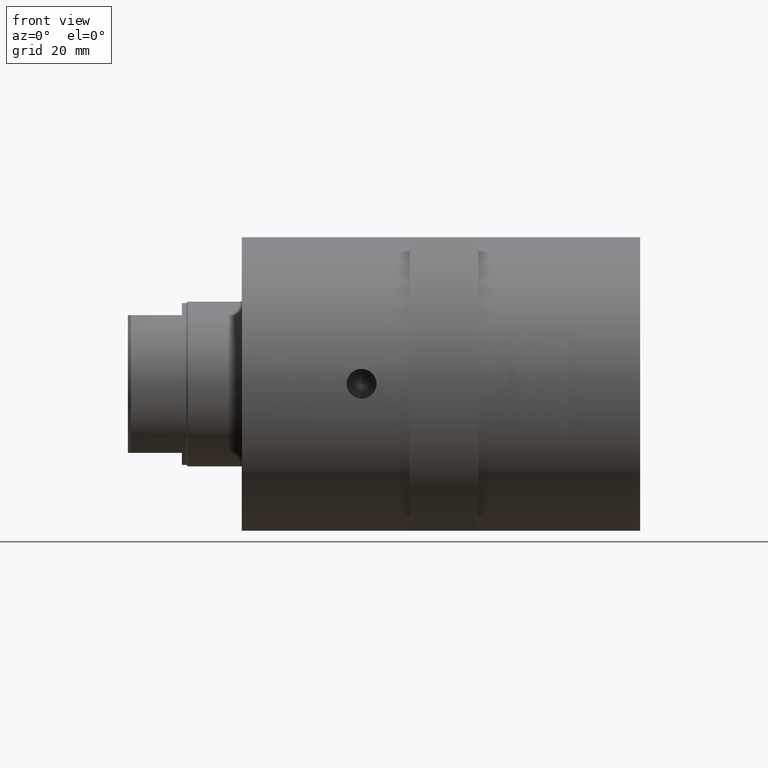
[diagram: clean part render]
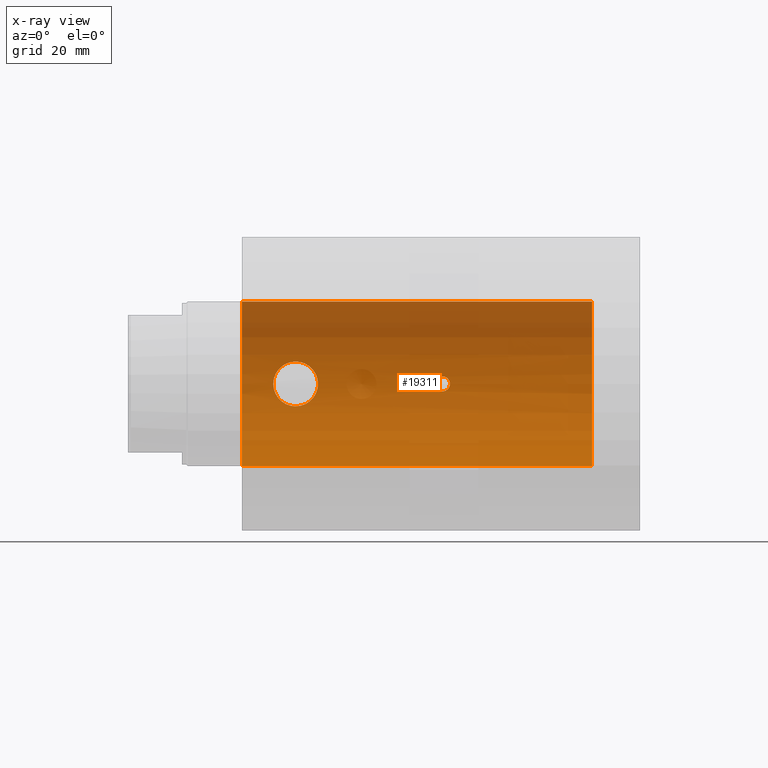
[diagram: x-ray — body ghosted, one internal face saturated and labeled with its STEP entity id]
A machine part, front view, then the same camera in x-ray: the body is ghosted and one INTERNAL B-rep face — a face not visible from any outside direction — is saturated and labeled: STEP entity #19311.
In plain terms, the highlighted cylindrical surface (partial cylindrical patch) has radius 27.5 mm, axis along (-1, 0, 0).
Its self-contained STEP definition (entity closure, byte-faithful):
#92 = CARTESIAN_POINT ( 'NONE',  ( 65.11523636070056400, 27.45066069105921300, -1.650730602895545500 ) ) ;
#181 = CARTESIAN_POINT ( 'NONE',  ( 65.89179133463778700, 27.40812334856206400, -2.246939515123460600 ) ) ;
#309 = CARTESIAN_POINT ( 'NONE',  ( 17.75536625532522100, 26.46458718740952400, -7.475000000000001400 ) ) ;
#333 = CARTESIAN_POINT ( 'NONE',  ( 0.0000000000000000000, 3.367778697655221300E-015, -27.50000000000000000 ) ) ;
#548 = CARTESIAN_POINT ( 'NONE',  ( 18.97795456427604000, 26.47821375219967900, -7.427267899481612400 ) ) ;
#566 = CARTESIAN_POINT ( 'NONE',  ( 11.19098580126821900, 27.32633757140092400, -3.094088770025283300 ) ) ;
#647 = CARTESIAN_POINT ( 'NONE',  ( 13.44288390249652000, 26.85343665521977700, 5.930277466082692700 ) ) ;
#694 = CARTESIAN_POINT ( 'NONE',  ( 67.00000000000000000, 27.38612787525830700, -2.500000000000000000 ) ) ;
#722 = CARTESIAN_POINT ( 'NONE',  ( 14.67728012207530600, 26.66857484413142700, 6.713780011691424600 ) ) ;
#786 = CARTESIAN_POINT ( 'NONE',  ( 25.47509942670567900, 27.50002702598584700, 0.4913167523612605400 ) ) ;
#914 = CARTESIAN_POINT ( 'NONE',  ( 66.67223394146361700, 27.38762298784715900, 2.483772405167611600 ) ) ;
#977 = CARTESIAN_POINT ( 'NONE',  ( 69.24589389846782700, 27.47799339182509800, -1.110304090982459300 ) ) ;
#993 = CARTESIAN_POINT ( 'NONE',  ( 24.71223318029187900, 27.30192028210517900, -3.326378843521970100 ) ) ;
#1040 = DIRECTION ( 'NONE',  ( -1.000000000000000000, 0.0000000000000000000, 0.0000000000000000000 ) ) ;
#1066 = CARTESIAN_POINT ( 'NONE',  ( 25.47495005776006100, 27.49998642479139800, -0.2479239431047444200 ) ) ;
#1109 = DIRECTION ( 'NONE',  ( -1.000000000000000000, 0.0000000000000000000, 0.0000000000000000000 ) ) ;
#1345 = CARTESIAN_POINT ( 'NONE',  ( 67.33046830124749200, 27.38612787525830000, 2.500000000000000000 ) ) ;
#1518 = EDGE_LOOP ( 'NONE', ( #2819, #14366, #2165, #8032 ) ) ;
#1933 = AXIS2_PLACEMENT_3D ( 'NONE', #17274, #17423, #7024 ) ;
#1978 = B_SPLINE_CURVE_WITH_KNOTS ( 'NONE', 3,
 ( #17946, #12544, #548, #2206, #3889, #5620, #7398, #5702, #7476, #19561, #21302, #10951, #14964, #19851, #9639, #11466, #993, #7926, #19780, #21613, #13070, #7710, #1066, #786, #16575, #11388, #18226, #2517, #4405, #6146, #2745, #14889, #11243, #13214, #21752, #9721, #2593, #8001, #14747, #9576, #16498, #4546 ),
 .UNSPECIFIED., .F., .F.,
 ( 4, 2, 2, 2, 2, 2, 2, 2, 2, 2, 2, 2, 2, 2, 2, 2, 2, 2, 2, 2, 4 ),
 ( 0.02348094683318185200, 0.02494810252371839100, 0.02641525821425493400, 0.02714883605952319800, 0.02788241390479146200, 0.02934956959532800100, 0.03008314744059626500, 0.03081672528586453000, 0.03228388097640105800, 0.03375103666693758700, 0.03448461451220585800, 0.03521819235747412200, 0.03668534804801065800, 0.03815250373854718600, 0.03961965942908371500, 0.04108681511962025000, 0.04182039296488851400, 0.04255397081015677800, 0.04402112650069330000, 0.04548828219122982200, 0.04695543788176634300 ),
 .UNSPECIFIED. ) ;
#2004 = B_SPLINE_CURVE_WITH_KNOTS ( 'NONE', 3,
 ( #17804, #5802, #5871, #16138, #21486, #16221, #9373, #722, #11041, #5720, #647, #2305, #19579, #17885, #7651, #5953, #7494, #4135, #9222, #12794, #21320, #9301, #10963, #11122, #12869, #2457, #14622, #566, #2385, #12724, #14469, #17958, #4206, #16364, #18036, #19652, #4068, #14550, #16295, #16197, #2124, #7472, #5850, #3807, #309, #17944 ),
 .UNSPECIFIED., .F., .F.,
 ( 4, 2, 2, 2, 2, 2, 2, 2, 2, 2, 2, 2, 2, 2, 2, 2, 2, 2, 2, 2, 2, 2, 4 ),
 ( 0.0000000000000000000, 0.001467559177073865800, 0.002201338765610793200, 0.002935118354147726400, 0.004402677531221588200, 0.005136457119758520500, 0.005870236708295452700, 0.007337795885369319800, 0.008805355062443185100, 0.009539134650980118200, 0.01027291423951705100, 0.01174047341659091800, 0.01320803259366478200, 0.01467559177073864600, 0.01540937135927558000, 0.01614315094781251400, 0.01687693053634944600, 0.01761071012488637700, 0.01907826930196024300, 0.02054582847903411000, 0.02201338765610797600, 0.02274716724464491400, 0.02348094683318185200 ),
 .UNSPECIFIED. ) ;
#2124 = CARTESIAN_POINT ( 'NONE',  ( 16.05069946200107000, 26.53191756535354500, -7.233074696947103800 ) ) ;
#2165 = ORIENTED_EDGE ( 'NONE', *, *, #15019, .T. ) ;
#2206 = CARTESIAN_POINT ( 'NONE',  ( 19.94890278087638400, 26.53182297594147000, -7.233428062208860300 ) ) ;
#2282 = CARTESIAN_POINT ( 'NONE',  ( 67.00000000000000000, 27.38612787525830000, 2.500000000000000000 ) ) ;
#2305 = CARTESIAN_POINT ( 'NONE',  ( 13.06480736279015200, 26.92017606621745400, 5.619552614264161000 ) ) ;
#2385 = CARTESIAN_POINT ( 'NONE',  ( 11.29707081203474100, 27.30001972485456500, -3.317539294584015900 ) ) ;
#2457 = CARTESIAN_POINT ( 'NONE',  ( 10.76608523352370700, 27.43529356087345800, -1.945777836373682200 ) ) ;
#2517 = CARTESIAN_POINT ( 'NONE',  ( 24.71615417418990300, 27.30289935315815000, 3.317670888814881400 ) ) ;
#2579 = CARTESIAN_POINT ( 'NONE',  ( 69.41978431206601400, 27.49280537999009500, -0.6489920584644003300 ) ) ;
#2593 = CARTESIAN_POINT ( 'NONE',  ( 21.32430097662706800, 26.66880538534104900, 6.712847478172550500 ) ) ;
#2658 = CARTESIAN_POINT ( 'NONE',  ( 64.83044321400032600, 27.47177960410005700, 1.253015001004229100 ) ) ;
#2745 = CARTESIAN_POINT ( 'NONE',  ( 23.63034157671647900, 27.05480027342353500, 4.940635970254273700 ) ) ;
#2757 = CARTESIAN_POINT ( 'NONE',  ( 67.00000000000000000, 27.38612787525830000, 2.500000000000000000 ) ) ;
#2787 = DIRECTION ( 'NONE',  ( 0.0000000000000000000, 0.0000000000000000000, 1.000000000000000000 ) ) ;
#2819 = ORIENTED_EDGE ( 'NONE', *, *, #18119, .F. ) ;
#2856 = DIRECTION ( 'NONE',  ( 0.0000000000000000000, 0.0000000000000000000, 1.000000000000000000 ) ) ;
#3075 = VERTEX_POINT ( 'NONE', #2757 ) ;
#3099 = CARTESIAN_POINT ( 'NONE',  ( 69.48400851460903000, 27.49853276776191900, 0.3259453402238068900 ) ) ;
#3330 = DIRECTION ( 'NONE',  ( -1.000000000000000000, 0.0000000000000000000, 0.0000000000000000000 ) ) ;
#3404 = EDGE_CURVE ( 'NONE', #18075, #9536, #2004, .T. ) ;
#3489 = CARTESIAN_POINT ( 'NONE',  ( 64.58009642053151800, 27.49281581413280800, -0.6486916680093112200 ) ) ;
#3807 = CARTESIAN_POINT ( 'NONE',  ( 17.51040728404204200, 26.46797979794881800, -7.463020768421211300 ) ) ;
#3889 = CARTESIAN_POINT ( 'NONE',  ( 20.41624920388523300, 26.57089150606278900, -7.090488265879765000 ) ) ;
#4068 = CARTESIAN_POINT ( 'NONE',  ( 13.43724227817003000, 26.85207456783437900, -5.940805415729937700 ) ) ;
#4135 = CARTESIAN_POINT ( 'NONE',  ( 11.00420413024272300, 27.37347927350591100, 2.644554621784801300 ) ) ;
#4206 = CARTESIAN_POINT ( 'NONE',  ( 12.06845284708464700, 27.12074438409769400, -4.555415824726341400 ) ) ;
#4248 = CARTESIAN_POINT ( 'NONE',  ( 69.42070319222412400, 27.49288653495426600, 0.6455499365810889500 ) ) ;
#4309 = CARTESIAN_POINT ( 'NONE',  ( 64.75265145546973100, 27.47811270257199500, -1.107371109850595400 ) ) ;
#4322 = CARTESIAN_POINT ( 'NONE',  ( 67.00000000000000000, 27.38612787525830000, 2.500000000000000000 ) ) ;
#4393 = CARTESIAN_POINT ( 'NONE',  ( 68.65123843601075700, 27.43562187941372700, -1.884135354010223300 ) ) ;
#4405 = CARTESIAN_POINT ( 'NONE',  ( 24.48663553563285700, 27.24665623698916400, 3.747008633669733200 ) ) ;
#4441 = CARTESIAN_POINT ( 'NONE',  ( 67.00000000000000000, 27.38612787525830700, -2.500000000000000000 ) ) ;
#4447 = CARTESIAN_POINT ( 'NONE',  ( 0.0000000000000000000, 0.0000000000000000000, 0.0000000000000000000 ) ) ;
#4546 = CARTESIAN_POINT ( 'NONE',  ( 18.00000000000000000, 26.46458718740949900, 7.474999999999999600 ) ) ;
#4585 = FACE_BOUND ( 'NONE', #9268, .T. ) ;
#4670 = LINE ( 'NONE', #13723, #9569 ) ;
#4766 = CARTESIAN_POINT ( 'NONE',  ( 69.16903744751194000, 27.47174050992752100, -1.253778617228837700 ) ) ;
#4833 = CARTESIAN_POINT ( 'NONE',  ( 69.49987046705263100, 27.49998822428105100, -0.1670435226102900400 ) ) ;
#5087 = CIRCLE ( 'NONE', #1933, 27.50000000000000000 ) ;
#5109 = CARTESIAN_POINT ( 'NONE',  ( 66.19463722653236500, 27.39754931085801500, -2.372394240787085300 ) ) ;
#5410 = LINE ( 'NONE', #18581, #9228 ) ;
#5620 = CARTESIAN_POINT ( 'NONE',  ( 21.09159976273779300, 26.64361601108005600, -6.810069799422271000 ) ) ;
#5702 = CARTESIAN_POINT ( 'NONE',  ( 21.74527712225109300, 26.72742879213649300, -6.473700826561126200 ) ) ;
#5704 = VERTEX_POINT ( 'NONE', #9482 ) ;
#5720 = CARTESIAN_POINT ( 'NONE',  ( 13.64078322933166600, 26.82045953393659900, 6.077197465274299000 ) ) ;
#5802 = CARTESIAN_POINT ( 'NONE',  ( 17.50357705932427900, 26.46458718740949600, 7.474999999999999600 ) ) ;
#5850 = CARTESIAN_POINT ( 'NONE',  ( 17.01982476427496800, 26.48159732814158900, -7.414555719979232700 ) ) ;
#5871 = CARTESIAN_POINT ( 'NONE',  ( 17.01594267226408500, 26.47855226445880200, 7.426043666811009000 ) ) ;
#5953 = CARTESIAN_POINT ( 'NONE',  ( 11.51502907539793900, 27.24625525416039900, 3.749955181108660000 ) ) ;
#6050 = VERTEX_POINT ( 'NONE', #15752 ) ;
#6063 = CARTESIAN_POINT ( 'NONE',  ( 68.98744441338102700, 27.45799953551538400, -1.525368471370080800 ) ) ;
#6067 = CARTESIAN_POINT ( 'NONE',  ( 64.58014072329702100, 27.49281172434021800, 0.6491215925948513600 ) ) ;
#6130 = EDGE_CURVE ( 'NONE', #3075, #20541, #16643, .T. ) ;
#6132 = CARTESIAN_POINT ( 'NONE',  ( 68.98962856416270000, 27.45815848969740400, 1.522509708945851900 ) ) ;
#6136 = CARTESIAN_POINT ( 'NONE',  ( 66.35257312043719900, 27.39331348887362700, 2.420205442812690700 ) ) ;
#6146 = CARTESIAN_POINT ( 'NONE',  ( 23.94100449293876000, 27.12193521689859200, 4.563001193053962000 ) ) ;
#6509 = CARTESIAN_POINT ( 'NONE',  ( 68.52812178172209200, 27.42839017208696400, 1.985401716315082800 ) ) ;
#6692 = EDGE_CURVE ( 'NONE', #12232, #20012, #10456, .T. ) ;
#6827 = AXIS2_PLACEMENT_3D ( 'NONE', #4447, #1040, #2787 ) ;
#7024 = DIRECTION ( 'NONE',  ( 0.0000000000000000000, 0.0000000000000000000, -1.000000000000000000 ) ) ;
#7172 = CARTESIAN_POINT ( 'NONE',  ( 66.67102248057341300, 27.38763498776080100, -2.483642640967841200 ) ) ;
#7398 = CARTESIAN_POINT ( 'NONE',  ( 21.31240657144706700, 26.67021534241586900, -6.705510108836606700 ) ) ;
#7472 = CARTESIAN_POINT ( 'NONE',  ( 16.77352149242575800, 26.49189970644537300, -7.377787931366915700 ) ) ;
#7476 = CARTESIAN_POINT ( 'NONE',  ( 21.95647026713157100, 26.75795249039468600, -6.346758895558967800 ) ) ;
#7494 = CARTESIAN_POINT ( 'NONE',  ( 11.28439349139099300, 27.30276682904957400, 3.318594614771981800 ) ) ;
#7651 = CARTESIAN_POINT ( 'NONE',  ( 12.06164728358473100, 27.12134971690172900, 4.566506188400625300 ) ) ;
#7710 = CARTESIAN_POINT ( 'NONE',  ( 25.46252850149625500, 27.49660259308493700, -0.4968329807652990800 ) ) ;
#7770 = CARTESIAN_POINT ( 'NONE',  ( 69.48355066367402300, 27.49849114849989800, -0.3294281558016760000 ) ) ;
#7846 = CARTESIAN_POINT ( 'NONE',  ( 68.88185113931592700, 27.45046672186377600, -1.653841193780660300 ) ) ;
#7850 = CARTESIAN_POINT ( 'NONE',  ( 65.47571930708818400, 27.42817934340705200, 1.988279891810456100 ) ) ;
#7915 = CARTESIAN_POINT ( 'NONE',  ( 69.37277398035654100, 27.48865506237168100, 0.8042476061222242300 ) ) ;
#7919 = CARTESIAN_POINT ( 'NONE',  ( 65.11665341132381000, 27.45056954539114400, 1.652143454996750200 ) ) ;
#7926 = CARTESIAN_POINT ( 'NONE',  ( 25.09109046697985700, 27.39752435594697000, -2.415637900503509800 ) ) ;
#8001 = CARTESIAN_POINT ( 'NONE',  ( 20.42422884492572200, 26.57162187730666900, 7.087765004276124400 ) ) ;
#8032 = ORIENTED_EDGE ( 'NONE', *, *, #6692, .T. ) ;
#8455 = DIRECTION ( 'NONE',  ( -1.000000000000000000, 0.0000000000000000000, 0.0000000000000000000 ) ) ;
#8502 = ORIENTED_EDGE ( 'NONE', *, *, #19664, .F. ) ;
#8921 = CARTESIAN_POINT ( 'NONE',  ( 66.35049678899045500, 27.39336011583177900, -2.419680258879280700 ) ) ;
#9199 = CARTESIAN_POINT ( 'NONE',  ( 18.00000000000000000, 26.46458718740951700, -7.475000000000000500 ) ) ;
#9222 = CARTESIAN_POINT ( 'NONE',  ( 10.92160271462969200, 27.39476796704532500, 2.414971832199575000 ) ) ;
#9228 = VECTOR ( 'NONE', #8455, 1000.000000000000000 ) ;
#9268 = EDGE_LOOP ( 'NONE', ( #9851, #8502 ) ) ;
#9301 = CARTESIAN_POINT ( 'NONE',  ( 10.57316423019457700, 27.48679011600199800, 0.9799958826268285700 ) ) ;
#9373 = CARTESIAN_POINT ( 'NONE',  ( 15.35533069121060000, 26.59545376958858400, 6.995803767636937600 ) ) ;
#9482 = CARTESIAN_POINT ( 'NONE',  ( 117.0000000000000000, 3.367778697655221300E-015, -27.50000000000000000 ) ) ;
#9536 = VERTEX_POINT ( 'NONE', #9199 ) ;
#9562 = CARTESIAN_POINT ( 'NONE',  ( 69.50012801195988700, 27.50001163744737900, 0.1631435389513688500 ) ) ;
#9566 = CARTESIAN_POINT ( 'NONE',  ( 64.50005910950045500, 27.49999462640940000, 0.1640558914491225800 ) ) ;
#9569 = VECTOR ( 'NONE', #3330, 1000.000000000000000 ) ;
#9576 = CARTESIAN_POINT ( 'NONE',  ( 18.98499015684164000, 26.47855172361378400, 7.426053744527072500 ) ) ;
#9589 = CARTESIAN_POINT ( 'NONE',  ( 18.00000000000000000, 26.46458718740949900, 7.474999999999999600 ) ) ;
#9639 = CARTESIAN_POINT ( 'NONE',  ( 24.07666494733543400, 27.15295491184173900, -4.359891687735240500 ) ) ;
#9721 = CARTESIAN_POINT ( 'NONE',  ( 21.75241555305292400, 26.72627696672832100, 6.483371653953957600 ) ) ;
#9737 = ORIENTED_EDGE ( 'NONE', *, *, #3404, .F. ) ;
#9851 = ORIENTED_EDGE ( 'NONE', *, *, #6130, .F. ) ;
#10010 = CARTESIAN_POINT ( 'NONE',  ( 67.16316649397330700, 27.38612787525831000, -2.499999999999999600 ) ) ;
#10088 = CARTESIAN_POINT ( 'NONE',  ( 64.51621981444961300, 27.49851181547902400, -0.3279789687410301100 ) ) ;
#10273 = CYLINDRICAL_SURFACE ( 'NONE', #17273, 27.50000000000000000 ) ;
#10348 = CARTESIAN_POINT ( 'NONE',  ( 65.74561186206759100, 27.41450740223011800, -2.168645730881158400 ) ) ;
#10456 = CIRCLE ( 'NONE', #6827, 27.50000000000000000 ) ;
#10533 = EDGE_CURVE ( 'NONE', #9536, #18075, #1978, .T. ) ;
#10856 = FACE_OUTER_BOUND ( 'NONE', #1518, .T. ) ;
#10951 = CARTESIAN_POINT ( 'NONE',  ( 23.45589447930661100, 27.02059529555370800, -5.115491179447162500 ) ) ;
#10963 = CARTESIAN_POINT ( 'NONE',  ( 10.52520639487911000, 27.49994389812379200, 0.4933385951403129700 ) ) ;
#11041 = CARTESIAN_POINT ( 'NONE',  ( 14.24886870206709200, 26.72611038003379500, 6.484021786524010600 ) ) ;
#11122 = CARTESIAN_POINT ( 'NONE',  ( 10.52479492181518900, 27.50005574397477300, -0.4870641104528031200 ) ) ;
#11243 = CARTESIAN_POINT ( 'NONE',  ( 22.93663079976898400, 26.92044451160366900, 5.618253238093627600 ) ) ;
#11310 = CARTESIAN_POINT ( 'NONE',  ( 65.34714103375847600, 27.43571972366612900, 1.882718674332908500 ) ) ;
#11376 = CARTESIAN_POINT ( 'NONE',  ( 67.65878620802818900, 27.39240263941124500, 2.433516015645654100 ) ) ;
#11388 = CARTESIAN_POINT ( 'NONE',  ( 25.23564567629214700, 27.43575126871149200, 1.939399153085896900 ) ) ;
#11466 = CARTESIAN_POINT ( 'NONE',  ( 24.48164213970038400, 27.24549456472542300, -3.754928736566446500 ) ) ;
#12232 = VERTEX_POINT ( 'NONE', #15855 ) ;
#12544 = CARTESIAN_POINT ( 'NONE',  ( 18.48913297154053500, 26.46458718740952400, -7.475000000000001400 ) ) ;
#12724 = CARTESIAN_POINT ( 'NONE',  ( 11.52803215052489000, 27.24423214412935600, -3.748194075197566200 ) ) ;
#12794 = CARTESIAN_POINT ( 'NONE',  ( 10.77850249750667000, 27.43209124396519600, 1.945705759188092400 ) ) ;
#12869 = CARTESIAN_POINT ( 'NONE',  ( 10.57402135063318800, 27.48655978516614000, -0.9850966126807390000 ) ) ;
#12910 = CARTESIAN_POINT ( 'NONE',  ( 69.17074978538970200, 27.47187653679266000, 1.250800945953072700 ) ) ;
#12988 = CARTESIAN_POINT ( 'NONE',  ( 68.25193953130884900, 27.41438871426008500, -2.170179709028784200 ) ) ;
#13060 = CARTESIAN_POINT ( 'NONE',  ( 65.01319811184866600, 27.45795112005506400, 1.526316316383046700 ) ) ;
#13070 = CARTESIAN_POINT ( 'NONE',  ( 25.41369753514016200, 27.48339014148262300, -0.9865411820480503000 ) ) ;
#13214 = CARTESIAN_POINT ( 'NONE',  ( 22.55994923622569800, 26.85392235942563100, 5.928065119718401600 ) ) ;
#13262 = EDGE_CURVE ( 'NONE', #6050, #5704, #5087, .T. ) ;
#13723 = CARTESIAN_POINT ( 'NONE',  ( 0.0000000000000000000, 0.0000000000000000000, 27.50000000000000000 ) ) ;
#13923 = CARTESIAN_POINT ( 'NONE',  ( 65.01191262932202600, 27.45804708777814400, -1.524477665120235200 ) ) ;
#13984 = EDGE_LOOP ( 'NONE', ( #9737, #18144 ) ) ;
#13995 = CARTESIAN_POINT ( 'NONE',  ( 64.83093286025392400, 27.47174386051819500, -1.253663147808603300 ) ) ;
#14366 = ORIENTED_EDGE ( 'NONE', *, *, #13262, .F. ) ;
#14469 = CARTESIAN_POINT ( 'NONE',  ( 11.65340176221168500, 27.21463547140297800, -3.956677226516737400 ) ) ;
#14550 = CARTESIAN_POINT ( 'NONE',  ( 14.24509501021473700, 26.72666200726781900, -6.481713934860972700 ) ) ;
#14622 = CARTESIAN_POINT ( 'NONE',  ( 10.90811423263496100, 27.39773570147468400, -2.412989839173694600 ) ) ;
#14667 = CARTESIAN_POINT ( 'NONE',  ( 69.37153482734346700, 27.48854777676171300, -0.8078596043400234600 ) ) ;
#14737 = CARTESIAN_POINT ( 'NONE',  ( 68.25523573427923900, 27.41454081324497900, 2.168261839886719900 ) ) ;
#14747 = CARTESIAN_POINT ( 'NONE',  ( 19.94746180671266700, 26.53179419601357800, 7.233524198969332600 ) ) ;
#14800 = CARTESIAN_POINT ( 'NONE',  ( 68.52537654616777700, 27.42823599129364000, -1.987525836796943700 ) ) ;
#14804 = CARTESIAN_POINT ( 'NONE',  ( 66.83472733295471400, 27.38612787525829600, 2.499999999999999600 ) ) ;
#14810 = CARTESIAN_POINT ( 'NONE',  ( 64.49994121683576500, 27.50000534392366400, -0.1622494136640427500 ) ) ;
#14873 = CARTESIAN_POINT ( 'NONE',  ( 67.80577265415378500, 27.39756680372998000, -2.372180173298015700 ) ) ;
#14889 = CARTESIAN_POINT ( 'NONE',  ( 23.11636300219137000, 26.95409652559842300, 5.455016580641665100 ) ) ;
#14964 = CARTESIAN_POINT ( 'NONE',  ( 23.62157235486766600, 27.05463902216343900, -4.932875786372445500 ) ) ;
#15019 = EDGE_CURVE ( 'NONE', #6050, #12232, #4670, .T. ) ;
#15673 = CARTESIAN_POINT ( 'NONE',  ( 66.83679547158021700, 27.38612787525830300, -2.500000000000000900 ) ) ;
#15752 = CARTESIAN_POINT ( 'NONE',  ( 117.0000000000000000, 0.0000000000000000000, 27.50000000000000000 ) ) ;
#15855 = CARTESIAN_POINT ( 'NONE',  ( 0.0000000000000000000, 0.0000000000000000000, 27.50000000000000000 ) ) ;
#16138 = CARTESIAN_POINT ( 'NONE',  ( 16.29701533945920000, 26.51824425378476100, 7.282526027236456500 ) ) ;
#16197 = CARTESIAN_POINT ( 'NONE',  ( 15.58459091216011800, 26.57080511972881400, -7.090818434165031500 ) ) ;
#16221 = CARTESIAN_POINT ( 'NONE',  ( 15.58866457699607700, 26.57317952350302900, 7.079663307188057300 ) ) ;
#16295 = CARTESIAN_POINT ( 'NONE',  ( 14.68293069207123500, 26.66789141350681200, -6.716469186582418000 ) ) ;
#16364 = CARTESIAN_POINT ( 'NONE',  ( 12.37790059389110200, 27.05475052652451900, -4.932247280019058000 ) ) ;
#16488 = CARTESIAN_POINT ( 'NONE',  ( 65.89100262670548600, 27.40815554304955300, 2.246547972525875900 ) ) ;
#16498 = CARTESIAN_POINT ( 'NONE',  ( 18.49628645556730400, 26.46458718740949600, 7.474999999999999600 ) ) ;
#16575 = CARTESIAN_POINT ( 'NONE',  ( 25.42693232242893200, 27.48681871457114700, 0.9780151869454023500 ) ) ;
#16643 = B_SPLINE_CURVE_WITH_KNOTS ( 'NONE', 3,
 ( #2282, #14804, #914, #6136, #18281, #16488, #21677, #7850, #11310, #7919, #13060, #2658, #18216, #19981, #6067, #19913, #9566, #14810, #10088, #3489, #20801, #4309, #13995, #13923, #92, #17570, #17343, #10348, #181, #5109, #8921, #7172, #15673, #19206 ),
 .UNSPECIFIED., .F., .F.,
 ( 4, 2, 2, 2, 2, 2, 2, 2, 2, 2, 2, 2, 2, 2, 2, 2, 4 ),
 ( 0.0000000000000000000, 0.0004887608213269591100, 0.0009775216426539182200, 0.001466282463980877300, 0.001955043285307836400, 0.002443804106634796000, 0.002932564927961755500, 0.003421325749288714600, 0.003910086570615673800, 0.004398847391942632900, 0.004887608213269592000, 0.005376369034596551100, 0.005865129855923510200, 0.006353890677250469300, 0.006842651498577428400, 0.007331412319904387500, 0.007820173141231345800 ),
 .UNSPECIFIED. ) ;
#16688 = CARTESIAN_POINT ( 'NONE',  ( 0.0000000000000000000, 0.0000000000000000000, 0.0000000000000000000 ) ) ;
#16935 = CARTESIAN_POINT ( 'NONE',  ( 68.65381067886635000, 27.43577730741108700, 1.881883143923741600 ) ) ;
#17008 = CARTESIAN_POINT ( 'NONE',  ( 68.10975443946235000, 27.40819194490655200, 2.246095490104247400 ) ) ;
#17273 = AXIS2_PLACEMENT_3D ( 'NONE', #16688, #1109, #2856 ) ;
#17274 = CARTESIAN_POINT ( 'NONE',  ( 117.0000000000000000, 0.0000000000000000000, 0.0000000000000000000 ) ) ;
#17343 = CARTESIAN_POINT ( 'NONE',  ( 65.47490500135971600, 27.42822708928198200, -1.987611418707643500 ) ) ;
#17423 = DIRECTION ( 'NONE',  ( -1.000000000000000000, -0.0000000000000000000, -0.0000000000000000000 ) ) ;
#17570 = CARTESIAN_POINT ( 'NONE',  ( 65.34862981569219200, 27.43562395655069600, -1.884203283549920500 ) ) ;
#17804 = CARTESIAN_POINT ( 'NONE',  ( 18.00000000000000000, 26.46458718740949900, 7.474999999999999600 ) ) ;
#17885 = CARTESIAN_POINT ( 'NONE',  ( 12.37027996516813700, 27.05466737893814200, 4.941376148899460800 ) ) ;
#17944 = CARTESIAN_POINT ( 'NONE',  ( 18.00000000000000000, 26.46458718740951700, -7.475000000000000500 ) ) ;
#17946 = CARTESIAN_POINT ( 'NONE',  ( 18.00000000000000000, 26.46458718740951700, -7.475000000000000500 ) ) ;
#17958 = CARTESIAN_POINT ( 'NONE',  ( 11.92361207072323400, 27.15289238583079600, -4.360288247315028600 ) ) ;
#18036 = CARTESIAN_POINT ( 'NONE',  ( 12.54348026344028200, 27.02071839601605100, -5.114859135532640300 ) ) ;
#18075 = VERTEX_POINT ( 'NONE', #9589 ) ;
#18119 = EDGE_CURVE ( 'NONE', #5704, #20012, #5410, .T. ) ;
#18144 = ORIENTED_EDGE ( 'NONE', *, *, #10533, .F. ) ;
#18216 = CARTESIAN_POINT ( 'NONE',  ( 64.75284147172185100, 27.47809786826710300, 1.107605604812126100 ) ) ;
#18226 = CARTESIAN_POINT ( 'NONE',  ( 25.09042596758706300, 27.39736714721011900, 2.416511248917586800 ) ) ;
#18276 = CARTESIAN_POINT ( 'NONE',  ( 68.88418803787298800, 27.45062752037526700, 1.651184231651045700 ) ) ;
#18281 = CARTESIAN_POINT ( 'NONE',  ( 66.19374267435841800, 27.39757591417851000, 2.372088128987540800 ) ) ;
#18581 = CARTESIAN_POINT ( 'NONE',  ( 0.0000000000000000000, 3.367778697655221300E-015, -27.50000000000000000 ) ) ;
#19206 = CARTESIAN_POINT ( 'NONE',  ( 67.00000000000000000, 27.38612787525830700, -2.500000000000000000 ) ) ;
#19311 = ADVANCED_FACE ( 'NONE', ( #10856, #4585, #21955 ), #10273, .F. ) ;
#19561 = CARTESIAN_POINT ( 'NONE',  ( 22.56391374852692500, 26.85225580315526600, -5.940020042745584500 ) ) ;
#19579 = CARTESIAN_POINT ( 'NONE',  ( 12.88469254877423100, 26.95389529176003400, 5.456013646272254800 ) ) ;
#19652 = CARTESIAN_POINT ( 'NONE',  ( 13.06228380021949300, 26.91914516241021400, -5.633262835839892600 ) ) ;
#19664 = EDGE_CURVE ( 'NONE', #20541, #3075, #20258, .T. ) ;
#19780 = CARTESIAN_POINT ( 'NONE',  ( 25.23358521908965100, 27.43520721417789000, -1.946579471048407700 ) ) ;
#19843 = CARTESIAN_POINT ( 'NONE',  ( 68.10664046961927900, 27.40806542468226000, -2.247633247612034400 ) ) ;
#19851 = CARTESIAN_POINT ( 'NONE',  ( 23.93174634534698700, 27.12078596914354700, -4.555186555922222000 ) ) ;
#19913 = CARTESIAN_POINT ( 'NONE',  ( 64.51593465443043800, 27.49853738350519800, 0.3263389648185153800 ) ) ;
#19972 = CARTESIAN_POINT ( 'NONE',  ( 67.32539058977435800, 27.38758628085671600, -2.484179970381220400 ) ) ;
#19981 = CARTESIAN_POINT ( 'NONE',  ( 64.62815887912714200, 27.48857528700815000, 0.8067721638486142800 ) ) ;
#20012 = VERTEX_POINT ( 'NONE', #333 ) ;
#20258 = B_SPLINE_CURVE_WITH_KNOTS ( 'NONE', 3,
 ( #694, #10010, #19972, #20347, #14873, #19843, #12988, #14800, #4393, #7846, #6063, #4766, #977, #14667, #2579, #7770, #4833, #9562, #3099, #4248, #7915, #21674, #12910, #6132, #18276, #16935, #6509, #14737, #17008, #11376, #1345, #4322 ),
 .UNSPECIFIED., .F., .F.,
 ( 4, 2, 2, 2, 2, 2, 2, 2, 2, 2, 2, 2, 2, 2, 2, 4 ),
 ( 0.007820173141231345800, 0.008308820057953520200, 0.008797466974675694600, 0.009286113891397867300, 0.009774760808120041800, 0.01026340772484221600, 0.01075205464156439100, 0.01124070155828656500, 0.01172934847500873800, 0.01221799539173091400, 0.01270664230845308700, 0.01319528922517526100, 0.01368393614189743500, 0.01417258305861960800, 0.01466122997534178400, 0.01563852380878609200 ),
 .UNSPECIFIED. ) ;
#20347 = CARTESIAN_POINT ( 'NONE',  ( 67.64791161914918400, 27.39331657031849300, -2.420173484469331900 ) ) ;
#20541 = VERTEX_POINT ( 'NONE', #4441 ) ;
#20801 = CARTESIAN_POINT ( 'NONE',  ( 64.62734355663762600, 27.48864494319199600, -0.8045791802582120700 ) ) ;
#21302 = CARTESIAN_POINT ( 'NONE',  ( 22.93863197916451200, 26.91932582834697700, -5.632333218098321700 ) ) ;
#21320 = CARTESIAN_POINT ( 'NONE',  ( 10.71778845874089500, 27.44818430268236000, 1.704606754873230200 ) ) ;
#21486 = CARTESIAN_POINT ( 'NONE',  ( 16.05947510918657200, 26.53459945652003400, 7.222917292445759000 ) ) ;
#21613 = CARTESIAN_POINT ( 'NONE',  ( 25.37738128848294000, 27.47358724059200700, -1.228595036648250300 ) ) ;
#21674 = CARTESIAN_POINT ( 'NONE',  ( 69.24744292103697800, 27.47812039531660500, 1.107190539379301300 ) ) ;
#21677 = CARTESIAN_POINT ( 'NONE',  ( 65.74743132131058600, 27.41442172941372500, 2.169737372155385600 ) ) ;
#21752 = CARTESIAN_POINT ( 'NONE',  ( 22.36189494110777800, 26.82089154431917100, 6.075300313092364000 ) ) ;
#21955 = FACE_BOUND ( 'NONE', #13984, .T. ) ;